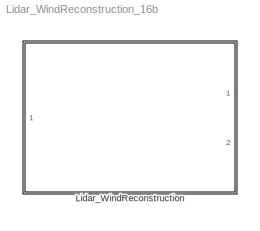
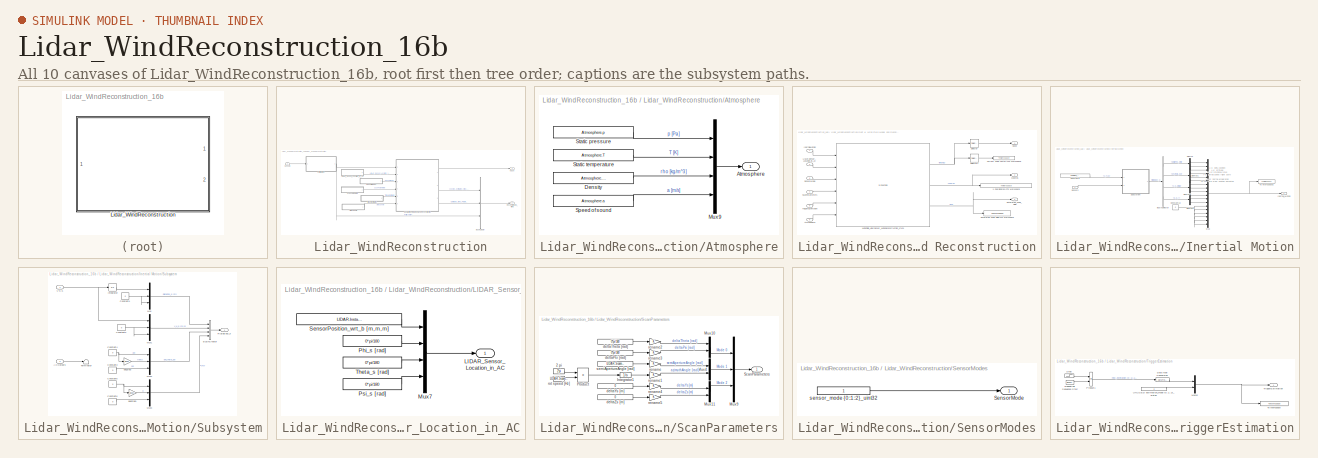
[diagram: thumbnail index - all 10 canvases of the model, root first then tree order]
MODEL Lidar_WindReconstruction_16b
KIND library
BLOCK [SubSystem] Lidar_WindReconstruction
  Ports = [1, 2]
  RequestExecContextInheritance = off
  SID = 1
BLOCK [SubSystem] Lidar_WindReconstruction/Atmosphere
  Ports = [0, 1]
  RequestExecContextInheritance = off
  SID = 3
BLOCK [Outport] Lidar_WindReconstruction/Atmosphere/Atmosphere
  IconDisplay = Port number
  SID = 9
BLOCK [Constant] Lidar_WindReconstruction/Atmosphere/Density
  SID = 4
  Value = Atmosphere.rho
BLOCK [Mux] Lidar_WindReconstruction/Atmosphere/Mux9
  DisplayOption = bar
  Ports = [4, 1]
  SID = 5
BLOCK [Constant] Lidar_WindReconstruction/Atmosphere/Speed of sound
  SID = 6
  Value = Atmosphere.a
BLOCK [Constant] Lidar_WindReconstruction/Atmosphere/Static pressure
  SID = 7
  Value = Atmosphere.p
BLOCK [Constant] Lidar_WindReconstruction/Atmosphere/Static temperature
  SID = 8
  Value = Atmosphere.T
BLOCK [BusCreator] Lidar_WindReconstruction/Bus\nCreator
  DisplayOption = bar
  InheritFromInputs = on
  Inputs = 3
  Ports = [3, 1]
  SID = 10
BLOCK [SubSystem] Lidar_WindReconstruction/Gust & Wind Field Model and Reconstruction
  Ports = [6, 3]
  RequestExecContextInheritance = off
  SID = 11
BLOCK [Inport] Lidar_WindReconstruction/Gust & Wind Field Model and Reconstruction/Atmosphere
  IconDisplay = Port number
  Port = 6
  SID = 18
BLOCK [ToWorkspace] Lidar_WindReconstruction/Gust & Wind Field Model and Reconstruction/Current Wind vector\nTo Workspace
  MaxDataPoints = inf
  Ports = [1]
  SID = 27
  SampleTime = -1
  SaveFormat = Structure
  VariableName = Current_Wind
BLOCK [ToWorkspace] Lidar_WindReconstruction/Gust & Wind Field Model and Reconstruction/Estimated Wind Field\nTo Workspace
  Decimation = SimConfig.Logging.DecimationFactor
  MaxDataPoints = inf
  Ports = [1]
  SID = 28
  SampleTime = 0.1
  SaveFormat = Structure With Time
  VariableName = Estimated_Wind_Field
BLOCK [Outport] Lidar_WindReconstruction/Gust & Wind Field Model and Reconstruction/Estimated_Wind_Field
  IconDisplay = Port number
  Port = 3
  SID = 32
BLOCK [Inport] Lidar_WindReconstruction/Gust & Wind Field Model and Reconstruction/InertialMotion
  IconDisplay = Port number
  SID = 13
BLOCK [Inport] Lidar_WindReconstruction/Gust & Wind Field Model and Reconstruction/LIDAR_Sensor_Location_in_AC
  IconDisplay = Port number
  Port = 2
  SID = 14
BLOCK [Inport] Lidar_WindReconstruction/Gust & Wind Field Model and Reconstruction/ScanParameters
  IconDisplay = Port number
  Port = 4
  SID = 16
BLOCK [Selector] Lidar_WindReconstruction/Gust & Wind Field Model and Reconstruction/Selector
  IndexOptions = Index vector (dialog)
  Indices = 3
  OutputSizes = 1
  Ports = [1, 1]
  SID = 20
BLOCK [Selector] Lidar_WindReconstruction/Gust & Wind Field Model and Reconstruction/Selector1
  IndexOptions = Index vector (dialog)
  Indices = 1:3
  OutputSizes = 1
  Ports = [1, 1]
  SID = 159
BLOCK [Inport] Lidar_WindReconstruction/Gust & Wind Field Model and Reconstruction/SensorMode
  IconDisplay = Port number
  Port = 3
  SID = 15
BLOCK [Inport] Lidar_WindReconstruction/Gust & Wind Field Model and Reconstruction/TriggerEstimation
  IconDisplay = Port number
  Port = 5
  SID = 17
BLOCK [Outport] Lidar_WindReconstruction/Gust & Wind Field Model and Reconstruction/Vgust
  IconDisplay = Port number
  SID = 30
BLOCK [S-Function] Lidar_WindReconstruction/Gust & Wind Field Model and Reconstruction/WindField_LidarSensor_WindReconstruction_sfun1
  EnableBusSupport = off
  FunctionName = WindField_LidarSensor_WindReconstruction_sfun_v1d4p
  Parameters = Atmosphere,LIDAR,WindReconstruction
  Ports = [6, 3]
  SFcnIsStateOwnerBlock = off
  SFunctionDeploymentMode = off
  SID = 162
BLOCK [ToWorkspace] Lidar_WindReconstruction/Gust & Wind Field Model and Reconstruction/x Coordinates\nTo Workspace
  Decimation = SimConfig.Logging.DecimationFactor
  MaxDataPoints = inf
  Ports = [1]
  SID = 29
  SampleTime = 0.1
  SaveFormat = Structure With Time
  VariableName = xCoords_Estimated_Wind_Field_Nodes
BLOCK [Outport] Lidar_WindReconstruction/Gust & Wind Field Model and Reconstruction/xCoords
  IconDisplay = Port number
  Port = 2
  SID = 31
BLOCK [SubSystem] Lidar_WindReconstruction/Inertial Motion
  Ports = [1, 1]
  RequestExecContextInheritance = off
  SID = 33
BLOCK [BusSelector] Lidar_WindReconstruction/Inertial Motion/Bus\nSelector
  OutputSignals = DeltaPos_o [m],phi_theta_psi,V_K_o [m/s],p_q_r
  Ports = [1, 4]
  SID = 35
BLOCK [Constant] Lidar_WindReconstruction/Inertial Motion/Constant13
  SID = 36
  Value = 0
BLOCK [Constant] Lidar_WindReconstruction/Inertial Motion/Constant8
  SID = 37
  Value = CRM.Flight_Point.Vt
BLOCK [Demux] Lidar_WindReconstruction/Inertial Motion/Demux
  DisplayOption = bar
  Outputs = 3
  Ports = [1, 3]
  SID = 38
BLOCK [Demux] Lidar_WindReconstruction/Inertial Motion/Demux1
  DisplayOption = bar
  Outputs = 3
  Ports = [1, 3]
  SID = 39
BLOCK [Demux] Lidar_WindReconstruction/Inertial Motion/Demux2
  DisplayOption = bar
  Outputs = 3
  Ports = [1, 3]
  SID = 40
BLOCK [Demux] Lidar_WindReconstruction/Inertial Motion/Demux3
  DisplayOption = bar
  Outputs = 3
  Ports = [1, 3]
  SID = 41
BLOCK [Outport] Lidar_WindReconstruction/Inertial Motion/Inertial_Motion
  IconDisplay = Port number
  SID = 65
BLOCK [Mux] Lidar_WindReconstruction/Inertial Motion/Mux
  DisplayOption = bar
  Inputs = 18
  Ports = [18, 1]
  SID = 42
BLOCK [Inport] Lidar_WindReconstruction/Inertial Motion/Sensors
  IconDisplay = Port number
  SID = 34
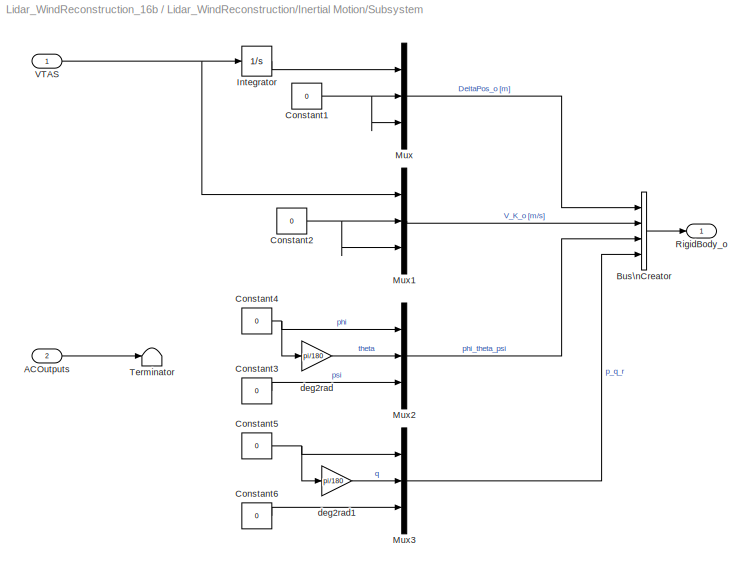
BLOCK [SubSystem] Lidar_WindReconstruction/Inertial Motion/Subsystem
  Ports = [2, 1]
  RequestExecContextInheritance = off
  SID = 43
BLOCK [Inport] Lidar_WindReconstruction/Inertial Motion/Subsystem/ACOutputs
  IconDisplay = Port number
  Port = 2
  SID = 45
BLOCK [BusCreator] Lidar_WindReconstruction/Inertial Motion/Subsystem/Bus\nCreator
  DisplayOption = bar
  InheritFromInputs = on
  Inputs = 4
  Ports = [4, 1]
  SID = 46
BLOCK [Constant] Lidar_WindReconstruction/Inertial Motion/Subsystem/Constant1
  SID = 47
  Value = 0
BLOCK [Constant] Lidar_WindReconstruction/Inertial Motion/Subsystem/Constant2
  SID = 48
  Value = 0
BLOCK [Constant] Lidar_WindReconstruction/Inertial Motion/Subsystem/Constant3
  SID = 49
  Value = 0
BLOCK [Constant] Lidar_WindReconstruction/Inertial Motion/Subsystem/Constant4
  SID = 50
  Value = 0
BLOCK [Constant] Lidar_WindReconstruction/Inertial Motion/Subsystem/Constant5
  SID = 51
  Value = 0
BLOCK [Constant] Lidar_WindReconstruction/Inertial Motion/Subsystem/Constant6
  SID = 52
  Value = 0
BLOCK [Integrator] Lidar_WindReconstruction/Inertial Motion/Subsystem/Integrator
  Ports = [1, 1]
  SID = 53
BLOCK [Mux] Lidar_WindReconstruction/Inertial Motion/Subsystem/Mux
  DisplayOption = bar
  Inputs = 3
  Ports = [3, 1]
  SID = 54
BLOCK [Mux] Lidar_WindReconstruction/Inertial Motion/Subsystem/Mux1
  DisplayOption = bar
  Inputs = 3
  Ports = [3, 1]
  SID = 55
BLOCK [Mux] Lidar_WindReconstruction/Inertial Motion/Subsystem/Mux2
  DisplayOption = bar
  Inputs = 3
  Ports = [3, 1]
  SID = 56
BLOCK [Mux] Lidar_WindReconstruction/Inertial Motion/Subsystem/Mux3
  DisplayOption = bar
  Inputs = 3
  Ports = [3, 1]
  SID = 57
BLOCK [Outport] Lidar_WindReconstruction/Inertial Motion/Subsystem/RigidBody_o
  IconDisplay = Port number
  SID = 61
BLOCK [Terminator] Lidar_WindReconstruction/Inertial Motion/Subsystem/Terminator
  SID = 58
BLOCK [Inport] Lidar_WindReconstruction/Inertial Motion/Subsystem/VTAS
  IconDisplay = Port number
  SID = 44
BLOCK [Gain] Lidar_WindReconstruction/Inertial Motion/Subsystem/deg2rad
  Gain = pi/180
  OutDataTypeStr = Inherit: Inherit via internal rule
  ParamDataTypeStr = Inherit: Inherit via internal rule
  SID = 59
  SaturateOnIntegerOverflow = off
BLOCK [Gain] Lidar_WindReconstruction/Inertial Motion/Subsystem/deg2rad1
  Gain = pi/180
  OutDataTypeStr = Inherit: Inherit via internal rule
  ParamDataTypeStr = Inherit: Inherit via internal rule
  SID = 60
  SaturateOnIntegerOverflow = off
BLOCK [ToWorkspace] Lidar_WindReconstruction/Inertial Motion/To Workspace2
  Decimation = SimConfig.Logging.DecimationFactor
  MaxDataPoints = inf
  Ports = [1]
  SID = 63
  SampleTime = -1
  SaveFormat = Structure
  VariableName = Inertial_Motion
BLOCK [SubSystem] Lidar_WindReconstruction/LIDAR_Sensor_Location_in_AC
  Ports = [0, 1]
  RequestExecContextInheritance = off
  SID = 67
BLOCK [Outport] Lidar_WindReconstruction/LIDAR_Sensor_Location_in_AC/LIDAR_Sensor_Location_in_AC
  IconDisplay = Port number
  SID = 73
BLOCK [Mux] Lidar_WindReconstruction/LIDAR_Sensor_Location_in_AC/Mux7
  DisplayOption = bar
  Ports = [4, 1]
  SID = 68
BLOCK [Constant] Lidar_WindReconstruction/LIDAR_Sensor_Location_in_AC/Phi_s [rad]
  SID = 69
  Value = 0*pi/180
BLOCK [Constant] Lidar_WindReconstruction/LIDAR_Sensor_Location_in_AC/Psi_s [rad]
  SID = 70
  Value = 0*pi/180
BLOCK [Constant] Lidar_WindReconstruction/LIDAR_Sensor_Location_in_AC/SensorPosition_wrt_b [m,m,m]
  SID = 71
  Value = LIDAR.Installation.Position_b
BLOCK [Constant] Lidar_WindReconstruction/LIDAR_Sensor_Location_in_AC/Theta_s [rad]
  SID = 72
  Value = 0*pi/180
BLOCK [Outport] Lidar_WindReconstruction/Reconstructed_Wind
  IconDisplay = Port number
  Port = 2
  SID = 108
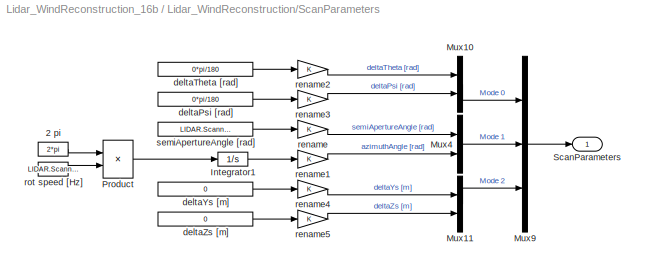
BLOCK [SubSystem] Lidar_WindReconstruction/ScanParameters
  Ports = [0, 1]
  RequestExecContextInheritance = off
  SID = 74
BLOCK [Constant] Lidar_WindReconstruction/ScanParameters/2 pi
  SID = 75
  Value = 2*pi
BLOCK [Integrator] Lidar_WindReconstruction/ScanParameters/Integrator1
  Ports = [1, 1]
  SID = 76
BLOCK [Mux] Lidar_WindReconstruction/ScanParameters/Mux10
  DisplayOption = bar
  Inputs = 2
  Ports = [2, 1]
  SID = 77
BLOCK [Mux] Lidar_WindReconstruction/ScanParameters/Mux11
  DisplayOption = bar
  Inputs = 2
  Ports = [2, 1]
  SID = 78
BLOCK [Mux] Lidar_WindReconstruction/ScanParameters/Mux4
  DisplayOption = bar
  Inputs = 2
  Ports = [2, 1]
  SID = 79
BLOCK [Mux] Lidar_WindReconstruction/ScanParameters/Mux9
  DisplayOption = bar
  Inputs = 3
  Ports = [3, 1]
  SID = 80
BLOCK [Product] Lidar_WindReconstruction/ScanParameters/Product
  InputSameDT = off
  OutDataTypeStr = Inherit: Inherit via internal rule
  Ports = [2, 1]
  SID = 81
  SaturateOnIntegerOverflow = off
BLOCK [Outport] Lidar_WindReconstruction/ScanParameters/ScanParameters
  IconDisplay = Port number
  SID = 94
BLOCK [Constant] Lidar_WindReconstruction/ScanParameters/deltaPsi [rad]
  OutDataTypeStr = double
  SID = 82
  Value = 0*pi/180
BLOCK [Constant] Lidar_WindReconstruction/ScanParameters/deltaTheta [rad]
  OutDataTypeStr = double
  SID = 83
  Value = 0*pi/180
BLOCK [Constant] Lidar_WindReconstruction/ScanParameters/deltaYs [m]
  OutDataTypeStr = double
  SID = 84
  Value = 0
BLOCK [Constant] Lidar_WindReconstruction/ScanParameters/deltaZs [m]
  OutDataTypeStr = double
  SID = 85
  Value = 0
BLOCK [Gain] Lidar_WindReconstruction/ScanParameters/rename
  OutDataTypeStr = Inherit: Inherit via internal rule
  ParamDataTypeStr = Inherit: Inherit via internal rule
  SID = 86
  SaturateOnIntegerOverflow = off
BLOCK [Gain] Lidar_WindReconstruction/ScanParameters/rename1
  OutDataTypeStr = Inherit: Inherit via internal rule
  ParamDataTypeStr = Inherit: Inherit via internal rule
  SID = 87
  SaturateOnIntegerOverflow = off
BLOCK [Gain] Lidar_WindReconstruction/ScanParameters/rename2
  OutDataTypeStr = Inherit: Inherit via internal rule
  ParamDataTypeStr = Inherit: Inherit via internal rule
  SID = 88
  SaturateOnIntegerOverflow = off
BLOCK [Gain] Lidar_WindReconstruction/ScanParameters/rename3
  OutDataTypeStr = Inherit: Inherit via internal rule
  ParamDataTypeStr = Inherit: Inherit via internal rule
  SID = 89
  SaturateOnIntegerOverflow = off
BLOCK [Gain] Lidar_WindReconstruction/ScanParameters/rename4
  OutDataTypeStr = Inherit: Inherit via internal rule
  ParamDataTypeStr = Inherit: Inherit via internal rule
  SID = 90
  SaturateOnIntegerOverflow = off
BLOCK [Gain] Lidar_WindReconstruction/ScanParameters/rename5
  OutDataTypeStr = Inherit: Inherit via internal rule
  ParamDataTypeStr = Inherit: Inherit via internal rule
  SID = 91
  SaturateOnIntegerOverflow = off
BLOCK [Constant] Lidar_WindReconstruction/ScanParameters/rot speed [Hz]
  SID = 92
  Value = LIDAR.Scanner.RotationFrequency
BLOCK [Constant] Lidar_WindReconstruction/ScanParameters/semiApertureAngle [rad]
  OutDataTypeStr = double
  SID = 93
  Value = LIDAR.Scanner.SemiApertureAngle*pi/180
BLOCK [SubSystem] Lidar_WindReconstruction/SensorModes
  Ports = [0, 1]
  RequestExecContextInheritance = off
  SID = 95
BLOCK [Outport] Lidar_WindReconstruction/SensorModes/SensorMode
  IconDisplay = Port number
  SID = 97
BLOCK [Constant] Lidar_WindReconstruction/SensorModes/sensor_mode {0::1::2}_uint32
  OutDataTypeStr = uint32
  SID = 96
BLOCK [Inport] Lidar_WindReconstruction/Sensors
  IconDisplay = Port number
  SID = 2
BLOCK [SubSystem] Lidar_WindReconstruction/TriggerEstimation
  Ports = [0, 1]
  RequestExecContextInheritance = off
  SID = 98
BLOCK [DataTypeConversion] Lidar_WindReconstruction/TriggerEstimation/Data Type Conversion
  OutDataTypeStr = uint32
  RndMeth = Floor
  SID = 99
  SaturateOnIntegerOverflow = off
BLOCK [Mux] Lidar_WindReconstruction/TriggerEstimation/Mux12
  DisplayOption = bar
  Inputs = 2
  Ports = [2, 1]
  SID = 100
BLOCK [Product] Lidar_WindReconstruction/TriggerEstimation/Product1
  InputSameDT = off
  OutDataTypeStr = Inherit: Inherit via internal rule
  Ports = [2, 1]
  SID = 101
  SaturateOnIntegerOverflow = off
BLOCK [Reference] Lidar_WindReconstruction/TriggerEstimation/Repeating Sequence Stair  REF=simulink/Sources/Repeating\nSequence\nStair
  ConRadixGroup = Best Precision: Vector-wise
  LockScale = off
  OutDataType = float('double')
  OutDataTypeStr = float('double')
  OutMax = []
  OutMin = []
  OutScaling = 2^-12
  OutValues = [1 zeros(1,(1/(10*SimConfig.SampleTime))-1)].'
  OutputDataTypeScalingMode = Specify via dialog
  Ports = [0, 1]
  SID = 102
  SourceBlock = simulink/Sources/Repeating\nSequence\nStair
  SourceType = Repeating Sequence Stair
  tsamp = -1
BLOCK [Step] Lidar_WindReconstruction/TriggerEstimation/Step
  SID = 103
  SampleTime = 0
  Time = WindReconstruction.StartEstimationTime
BLOCK [ToWorkspace] Lidar_WindReconstruction/TriggerEstimation/To Workspace
  MaxDataPoints = inf
  Ports = [1]
  SID = 104
  SampleTime = -1
  SaveFormat = Structure
  VariableName = TriggerEstimation
BLOCK [Outport] Lidar_WindReconstruction/TriggerEstimation/TriggerEstimation
  IconDisplay = Port number
  SID = 106
BLOCK [Constant] Lidar_WindReconstruction/TriggerEstimation/UNUSED estimation_mode {0::1::2}_uint32
  OutDataTypeStr = uint32
  SID = 105
  Value = 2
BLOCK [Outport] Lidar_WindReconstruction/Vgust
  IconDisplay = Port number
  SID = 107
ANNOTATION Lidar_WindReconstruction/Inertial Motion: 1-3: delta position\n4-6: attitude\n7-9: inertial speed (flight path)\n10-12:rotational rates\n13-15: inertial acceleration\n16-18: third order position derivative
LINE Lidar_WindReconstruction/Atmosphere/Density:1 -> Lidar_WindReconstruction/Atmosphere/Mux9:3
LINE Lidar_WindReconstruction/Atmosphere/Mux9:1 -> Lidar_WindReconstruction/Atmosphere/Atmosphere:1
LINE Lidar_WindReconstruction/Atmosphere/Speed of sound:1 -> Lidar_WindReconstruction/Atmosphere/Mux9:4
LINE Lidar_WindReconstruction/Atmosphere/Static pressure:1 -> Lidar_WindReconstruction/Atmosphere/Mux9:1
LINE Lidar_WindReconstruction/Atmosphere/Static temperature:1 -> Lidar_WindReconstruction/Atmosphere/Mux9:2
LINE Lidar_WindReconstruction/Atmosphere:1 -> Lidar_WindReconstruction/Gust & Wind Field Model and Reconstruction:6
LINE Lidar_WindReconstruction/Bus\nCreator:1 -> Lidar_WindReconstruction/Reconstructed_Wind:1
LINE Lidar_WindReconstruction/Gust & Wind Field Model and Reconstruction/Atmosphere:1 -> Lidar_WindReconstruction/Gust & Wind Field Model and Reconstruction/WindField_LidarSensor_WindReconstruction_sfun1:6
LINE Lidar_WindReconstruction/Gust & Wind Field Model and Reconstruction/InertialMotion:1 -> Lidar_WindReconstruction/Gust & Wind Field Model and Reconstruction/WindField_LidarSensor_WindReconstruction_sfun1:1
LINE Lidar_WindReconstruction/Gust & Wind Field Model and Reconstruction/LIDAR_Sensor_Location_in_AC:1 -> Lidar_WindReconstruction/Gust & Wind Field Model and Reconstruction/WindField_LidarSensor_WindReconstruction_sfun1:2
LINE Lidar_WindReconstruction/Gust & Wind Field Model and Reconstruction/ScanParameters:1 -> Lidar_WindReconstruction/Gust & Wind Field Model and Reconstruction/WindField_LidarSensor_WindReconstruction_sfun1:4
LINE Lidar_WindReconstruction/Gust & Wind Field Model and Reconstruction/Selector1:1 -> Lidar_WindReconstruction/Gust & Wind Field Model and Reconstruction/Current Wind vector\nTo Workspace:1
LINE Lidar_WindReconstruction/Gust & Wind Field Model and Reconstruction/Selector:1 -> Lidar_WindReconstruction/Gust & Wind Field Model and Reconstruction/Vgust:1
LINE Lidar_WindReconstruction/Gust & Wind Field Model and Reconstruction/SensorMode:1 -> Lidar_WindReconstruction/Gust & Wind Field Model and Reconstruction/WindField_LidarSensor_WindReconstruction_sfun1:3
LINE Lidar_WindReconstruction/Gust & Wind Field Model and Reconstruction/TriggerEstimation:1 -> Lidar_WindReconstruction/Gust & Wind Field Model and Reconstruction/WindField_LidarSensor_WindReconstruction_sfun1:5
NET Lidar_WindReconstruction/Gust & Wind Field Model and Reconstruction/WindField_LidarSensor_WindReconstruction_sfun1:1 -> Lidar_WindReconstruction/Gust & Wind Field Model and Reconstruction/Selector1:1, Lidar_WindReconstruction/Gust & Wind Field Model and Reconstruction/Selector:1
NET Lidar_WindReconstruction/Gust & Wind Field Model and Reconstruction/WindField_LidarSensor_WindReconstruction_sfun1:2 -> Lidar_WindReconstruction/Gust & Wind Field Model and Reconstruction/x Coordinates\nTo Workspace:1, Lidar_WindReconstruction/Gust & Wind Field Model and Reconstruction/xCoords:1
NET Lidar_WindReconstruction/Gust & Wind Field Model and Reconstruction/WindField_LidarSensor_WindReconstruction_sfun1:3 -> Lidar_WindReconstruction/Gust & Wind Field Model and Reconstruction/Estimated Wind Field\nTo Workspace:1, Lidar_WindReconstruction/Gust & Wind Field Model and Reconstruction/Estimated_Wind_Field:1
LINE Lidar_WindReconstruction/Gust & Wind Field Model and Reconstruction:1 -> Lidar_WindReconstruction/Vgust:1
LINE Lidar_WindReconstruction/Gust & Wind Field Model and Reconstruction:2 -> Lidar_WindReconstruction/Bus\nCreator:1
LINE Lidar_WindReconstruction/Gust & Wind Field Model and Reconstruction:3 -> Lidar_WindReconstruction/Bus\nCreator:2
LINE Lidar_WindReconstruction/Inertial Motion/Bus\nSelector:1 -> Lidar_WindReconstruction/Inertial Motion/Demux:1
LINE Lidar_WindReconstruction/Inertial Motion/Bus\nSelector:2 -> Lidar_WindReconstruction/Inertial Motion/Demux1:1
LINE Lidar_WindReconstruction/Inertial Motion/Bus\nSelector:3 -> Lidar_WindReconstruction/Inertial Motion/Demux2:1
LINE Lidar_WindReconstruction/Inertial Motion/Bus\nSelector:4 -> Lidar_WindReconstruction/Inertial Motion/Demux3:1
NET Lidar_WindReconstruction/Inertial Motion/Constant13:1 -> Lidar_WindReconstruction/Inertial Motion/Mux:13, Lidar_WindReconstruction/Inertial Motion/Mux:14, Lidar_WindReconstruction/Inertial Motion/Mux:15, Lidar_WindReconstruction/Inertial Motion/Mux:16, Lidar_WindReconstruction/Inertial Motion/Mux:17, Lidar_WindReconstruction/Inertial Motion/Mux:18
LINE Lidar_WindReconstruction/Inertial Motion/Constant8:1 -> Lidar_WindReconstruction/Inertial Motion/Subsystem:1
LINE Lidar_WindReconstruction/Inertial Motion/Demux1:1 -> Lidar_WindReconstruction/Inertial Motion/Mux:4
LINE Lidar_WindReconstruction/Inertial Motion/Demux1:2 -> Lidar_WindReconstruction/Inertial Motion/Mux:5
LINE Lidar_WindReconstruction/Inertial Motion/Demux1:3 -> Lidar_WindReconstruction/Inertial Motion/Mux:6
LINE Lidar_WindReconstruction/Inertial Motion/Demux2:1 -> Lidar_WindReconstruction/Inertial Motion/Mux:7
LINE Lidar_WindReconstruction/Inertial Motion/Demux2:2 -> Lidar_WindReconstruction/Inertial Motion/Mux:8
LINE Lidar_WindReconstruction/Inertial Motion/Demux2:3 -> Lidar_WindReconstruction/Inertial Motion/Mux:9
LINE Lidar_WindReconstruction/Inertial Motion/Demux3:1 -> Lidar_WindReconstruction/Inertial Motion/Mux:10
LINE Lidar_WindReconstruction/Inertial Motion/Demux3:2 -> Lidar_WindReconstruction/Inertial Motion/Mux:11
LINE Lidar_WindReconstruction/Inertial Motion/Demux3:3 -> Lidar_WindReconstruction/Inertial Motion/Mux:12
LINE Lidar_WindReconstruction/Inertial Motion/Demux:1 -> Lidar_WindReconstruction/Inertial Motion/Mux:1
LINE Lidar_WindReconstruction/Inertial Motion/Demux:2 -> Lidar_WindReconstruction/Inertial Motion/Mux:2
LINE Lidar_WindReconstruction/Inertial Motion/Demux:3 -> Lidar_WindReconstruction/Inertial Motion/Mux:3
NET Lidar_WindReconstruction/Inertial Motion/Mux:1 -> Lidar_WindReconstruction/Inertial Motion/Inertial_Motion:1, Lidar_WindReconstruction/Inertial Motion/To Workspace2:1
LINE Lidar_WindReconstruction/Inertial Motion/Sensors:1 -> Lidar_WindReconstruction/Inertial Motion/Subsystem:2
LINE Lidar_WindReconstruction/Inertial Motion/Subsystem/ACOutputs:1 -> Lidar_WindReconstruction/Inertial Motion/Subsystem/Terminator:1
LINE Lidar_WindReconstruction/Inertial Motion/Subsystem/Bus\nCreator:1 -> Lidar_WindReconstruction/Inertial Motion/Subsystem/RigidBody_o:1
NET Lidar_WindReconstruction/Inertial Motion/Subsystem/Constant1:1 -> Lidar_WindReconstruction/Inertial Motion/Subsystem/Mux:2, Lidar_WindReconstruction/Inertial Motion/Subsystem/Mux:3
NET Lidar_WindReconstruction/Inertial Motion/Subsystem/Constant2:1 -> Lidar_WindReconstruction/Inertial Motion/Subsystem/Mux1:2, Lidar_WindReconstruction/Inertial Motion/Subsystem/Mux1:3
LINE Lidar_WindReconstruction/Inertial Motion/Subsystem/Constant3:1 -> Lidar_WindReconstruction/Inertial Motion/Subsystem/Mux2:3
NET Lidar_WindReconstruction/Inertial Motion/Subsystem/Constant4:1 -> Lidar_WindReconstruction/Inertial Motion/Subsystem/Mux2:1, Lidar_WindReconstruction/Inertial Motion/Subsystem/deg2rad:1
NET Lidar_WindReconstruction/Inertial Motion/Subsystem/Constant5:1 -> Lidar_WindReconstruction/Inertial Motion/Subsystem/Mux3:1, Lidar_WindReconstruction/Inertial Motion/Subsystem/deg2rad1:1
LINE Lidar_WindReconstruction/Inertial Motion/Subsystem/Constant6:1 -> Lidar_WindReconstruction/Inertial Motion/Subsystem/Mux3:3
LINE Lidar_WindReconstruction/Inertial Motion/Subsystem/Integrator:1 -> Lidar_WindReconstruction/Inertial Motion/Subsystem/Mux:1
LINE Lidar_WindReconstruction/Inertial Motion/Subsystem/Mux1:1 -> Lidar_WindReconstruction/Inertial Motion/Subsystem/Bus\nCreator:2
LINE Lidar_WindReconstruction/Inertial Motion/Subsystem/Mux2:1 -> Lidar_WindReconstruction/Inertial Motion/Subsystem/Bus\nCreator:3
LINE Lidar_WindReconstruction/Inertial Motion/Subsystem/Mux3:1 -> Lidar_WindReconstruction/Inertial Motion/Subsystem/Bus\nCreator:4
LINE Lidar_WindReconstruction/Inertial Motion/Subsystem/Mux:1 -> Lidar_WindReconstruction/Inertial Motion/Subsystem/Bus\nCreator:1
NET Lidar_WindReconstruction/Inertial Motion/Subsystem/VTAS:1 -> Lidar_WindReconstruction/Inertial Motion/Subsystem/Integrator:1, Lidar_WindReconstruction/Inertial Motion/Subsystem/Mux1:1
LINE Lidar_WindReconstruction/Inertial Motion/Subsystem/deg2rad1:1 -> Lidar_WindReconstruction/Inertial Motion/Subsystem/Mux3:2
LINE Lidar_WindReconstruction/Inertial Motion/Subsystem/deg2rad:1 -> Lidar_WindReconstruction/Inertial Motion/Subsystem/Mux2:2
LINE Lidar_WindReconstruction/Inertial Motion/Subsystem:1 -> Lidar_WindReconstruction/Inertial Motion/Bus\nSelector:1
NET Lidar_WindReconstruction/Inertial Motion:1 -> Lidar_WindReconstruction/Bus\nCreator:3, Lidar_WindReconstruction/Gust & Wind Field Model and Reconstruction:1
LINE Lidar_WindReconstruction/LIDAR_Sensor_Location_in_AC/Mux7:1 -> Lidar_WindReconstruction/LIDAR_Sensor_Location_in_AC/LIDAR_Sensor_Location_in_AC:1
LINE Lidar_WindReconstruction/LIDAR_Sensor_Location_in_AC/Phi_s [rad]:1 -> Lidar_WindReconstruction/LIDAR_Sensor_Location_in_AC/Mux7:2
LINE Lidar_WindReconstruction/LIDAR_Sensor_Location_in_AC/Psi_s [rad]:1 -> Lidar_WindReconstruction/LIDAR_Sensor_Location_in_AC/Mux7:4
LINE Lidar_WindReconstruction/LIDAR_Sensor_Location_in_AC/SensorPosition_wrt_b [m,m,m]:1 -> Lidar_WindReconstruction/LIDAR_Sensor_Location_in_AC/Mux7:1
LINE Lidar_WindReconstruction/LIDAR_Sensor_Location_in_AC/Theta_s [rad]:1 -> Lidar_WindReconstruction/LIDAR_Sensor_Location_in_AC/Mux7:3
LINE Lidar_WindReconstruction/LIDAR_Sensor_Location_in_AC:1 -> Lidar_WindReconstruction/Gust & Wind Field Model and Reconstruction:2
LINE Lidar_WindReconstruction/ScanParameters/2 pi:1 -> Lidar_WindReconstruction/ScanParameters/Product:1
LINE Lidar_WindReconstruction/ScanParameters/Integrator1:1 -> Lidar_WindReconstruction/ScanParameters/rename1:1
LINE Lidar_WindReconstruction/ScanParameters/Mux10:1 -> Lidar_WindReconstruction/ScanParameters/Mux9:1
LINE Lidar_WindReconstruction/ScanParameters/Mux11:1 -> Lidar_WindReconstruction/ScanParameters/Mux9:3
LINE Lidar_WindReconstruction/ScanParameters/Mux4:1 -> Lidar_WindReconstruction/ScanParameters/Mux9:2
LINE Lidar_WindReconstruction/ScanParameters/Mux9:1 -> Lidar_WindReconstruction/ScanParameters/ScanParameters:1
LINE Lidar_WindReconstruction/ScanParameters/Product:1 -> Lidar_WindReconstruction/ScanParameters/Integrator1:1
LINE Lidar_WindReconstruction/ScanParameters/deltaPsi [rad]:1 -> Lidar_WindReconstruction/ScanParameters/rename3:1
LINE Lidar_WindReconstruction/ScanParameters/deltaTheta [rad]:1 -> Lidar_WindReconstruction/ScanParameters/rename2:1
LINE Lidar_WindReconstruction/ScanParameters/deltaYs [m]:1 -> Lidar_WindReconstruction/ScanParameters/rename4:1
LINE Lidar_WindReconstruction/ScanParameters/deltaZs [m]:1 -> Lidar_WindReconstruction/ScanParameters/rename5:1
LINE Lidar_WindReconstruction/ScanParameters/rename1:1 -> Lidar_WindReconstruction/ScanParameters/Mux4:2
LINE Lidar_WindReconstruction/ScanParameters/rename2:1 -> Lidar_WindReconstruction/ScanParameters/Mux10:1
LINE Lidar_WindReconstruction/ScanParameters/rename3:1 -> Lidar_WindReconstruction/ScanParameters/Mux10:2
LINE Lidar_WindReconstruction/ScanParameters/rename4:1 -> Lidar_WindReconstruction/ScanParameters/Mux11:1
LINE Lidar_WindReconstruction/ScanParameters/rename5:1 -> Lidar_WindReconstruction/ScanParameters/Mux11:2
LINE Lidar_WindReconstruction/ScanParameters/rename:1 -> Lidar_WindReconstruction/ScanParameters/Mux4:1
LINE Lidar_WindReconstruction/ScanParameters/rot speed [Hz]:1 -> Lidar_WindReconstruction/ScanParameters/Product:2
LINE Lidar_WindReconstruction/ScanParameters/semiApertureAngle [rad]:1 -> Lidar_WindReconstruction/ScanParameters/rename:1
LINE Lidar_WindReconstruction/ScanParameters:1 -> Lidar_WindReconstruction/Gust & Wind Field Model and Reconstruction:4
LINE Lidar_WindReconstruction/SensorModes/sensor_mode {0::1::2}_uint32:1 -> Lidar_WindReconstruction/SensorModes/SensorMode:1
LINE Lidar_WindReconstruction/SensorModes:1 -> Lidar_WindReconstruction/Gust & Wind Field Model and Reconstruction:3
LINE Lidar_WindReconstruction/Sensors:1 -> Lidar_WindReconstruction/Inertial Motion:1
LINE Lidar_WindReconstruction/TriggerEstimation/Data Type Conversion:1 -> Lidar_WindReconstruction/TriggerEstimation/Mux12:1
NET Lidar_WindReconstruction/TriggerEstimation/Mux12:1 -> Lidar_WindReconstruction/TriggerEstimation/To Workspace:1, Lidar_WindReconstruction/TriggerEstimation/TriggerEstimation:1
LINE Lidar_WindReconstruction/TriggerEstimation/Product1:1 -> Lidar_WindReconstruction/TriggerEstimation/Data Type Conversion:1
LINE Lidar_WindReconstruction/TriggerEstimation/Repeating Sequence Stair:1 -> Lidar_WindReconstruction/TriggerEstimation/Product1:2
LINE Lidar_WindReconstruction/TriggerEstimation/Step:1 -> Lidar_WindReconstruction/TriggerEstimation/Product1:1
LINE Lidar_WindReconstruction/TriggerEstimation/UNUSED estimation_mode {0::1::2}_uint32:1 -> Lidar_WindReconstruction/TriggerEstimation/Mux12:2
LINE Lidar_WindReconstruction/TriggerEstimation:1 -> Lidar_WindReconstruction/Gust & Wind Field Model and Reconstruction:5
note: NET lines group one-source signal fan-out (src -> all destinations, sorted); 1:1 wires keep LINE
